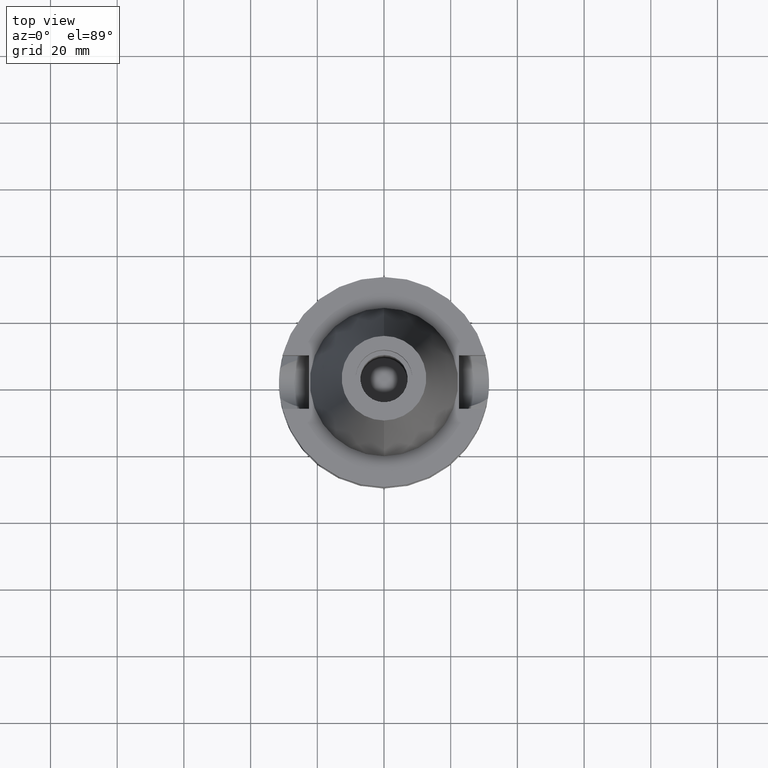
[diagram: clean part render]
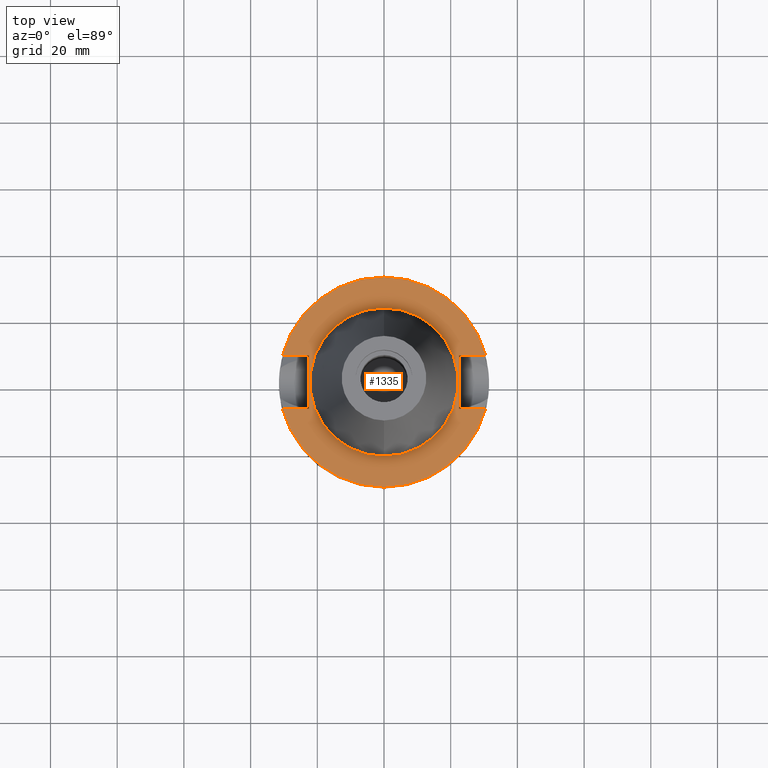
[diagram: same view with one face highlighted and labeled with its STEP entity id]
A machine part, top view. The second image highlights one B-rep face of the part: STEP entity #1335.
In plain terms, the highlighted planar face has unit normal (0, 0, -1).
Its self-contained STEP definition (entity closure, byte-faithful):
#94=DIRECTION('',(0.E0,1.E0,0.E0));
#95=VECTOR('',#94,1.61E1);
#96=CARTESIAN_POINT('',(-2.25E1,-8.05E0,-1.E0));
#97=LINE('',#96,#95);
#101=DIRECTION('',(-1.E0,-3.550916904668E-14,0.E0));
#102=VECTOR('',#101,7.954022722788E0);
#103=CARTESIAN_POINT('',(-2.25E1,8.05E0,-1.E0));
#104=LINE('',#103,#102);
#108=CARTESIAN_POINT('',(0.E0,2.148275415064E-14,-1.E0));
#109=DIRECTION('',(0.E0,0.E0,-1.E0));
#110=DIRECTION('',(-9.667943721520E-1,2.555555555556E-1,0.E0));
#111=AXIS2_PLACEMENT_3D('',#108,#109,#110);
#116=CARTESIAN_POINT('',(0.E0,2.148275415064E-14,-1.E0));
#117=DIRECTION('',(0.E0,0.E0,-1.E0));
#118=DIRECTION('',(0.E0,1.E0,0.E0));
#119=AXIS2_PLACEMENT_3D('',#116,#117,#118);
#124=DIRECTION('',(0.E0,-1.E0,0.E0));
#125=VECTOR('',#124,1.61E1);
#126=CARTESIAN_POINT('',(2.25E1,8.05E0,-1.E0));
#127=LINE('',#126,#125);
#131=DIRECTION('',(1.E0,3.573249715390E-14,0.E0));
#132=VECTOR('',#131,7.954022722788E0);
#133=CARTESIAN_POINT('',(2.25E1,-8.05E0,-1.E0));
#134=LINE('',#133,#132);
#138=CARTESIAN_POINT('',(0.E0,2.148275415064E-14,-1.E0));
#139=DIRECTION('',(0.E0,0.E0,-1.E0));
#140=DIRECTION('',(9.667943721520E-1,-2.555555555556E-1,0.E0));
#141=AXIS2_PLACEMENT_3D('',#138,#139,#140);
#146=CARTESIAN_POINT('',(0.E0,2.148275415064E-14,-1.E0));
#147=DIRECTION('',(0.E0,0.E0,-1.E0));
#148=DIRECTION('',(0.E0,-1.E0,0.E0));
#149=AXIS2_PLACEMENT_3D('',#146,#147,#148);
#154=CARTESIAN_POINT('',(0.E0,2.148275415064E-14,-1.E0));
#155=DIRECTION('',(0.E0,0.E0,1.E0));
#156=DIRECTION('',(0.E0,1.E0,0.E0));
#157=AXIS2_PLACEMENT_3D('',#154,#155,#156);
#162=CARTESIAN_POINT('',(0.E0,2.148275415064E-14,-1.E0));
#163=DIRECTION('',(0.E0,0.E0,1.E0));
#164=DIRECTION('',(0.E0,-1.E0,0.E0));
#165=AXIS2_PLACEMENT_3D('',#162,#163,#164);
#200=DIRECTION('',(-1.E0,3.550916904668E-14,0.E0));
#201=VECTOR('',#200,7.954022722788E0);
#202=CARTESIAN_POINT('',(-2.25E1,-8.05E0,-1.E0));
#203=LINE('',#202,#201);
#337=DIRECTION('',(1.E0,-3.506251283226E-14,0.E0));
#338=VECTOR('',#337,7.954022722788E0);
#339=CARTESIAN_POINT('',(2.25E1,8.05E0,-1.E0));
#340=LINE('',#339,#338);
#1088=CARTESIAN_POINT('',(0.E0,2.2225E1,-1.E0));
#1089=VERTEX_POINT('',#1088);
#1090=CARTESIAN_POINT('',(0.E0,-2.2225E1,-1.E0));
#1091=VERTEX_POINT('',#1090);
#1092=CARTESIAN_POINT('',(-2.25E1,-8.05E0,-1.E0));
#1093=CARTESIAN_POINT('',(-2.25E1,8.05E0,-1.E0));
#1094=VERTEX_POINT('',#1092);
#1095=VERTEX_POINT('',#1093);
#1096=CARTESIAN_POINT('',(-3.045402272279E1,8.05E0,-1.E0));
#1097=VERTEX_POINT('',#1096);
#1098=CARTESIAN_POINT('',(-3.046064939756E-14,3.15E1,-1.E0));
#1099=CARTESIAN_POINT('',(3.045402272279E1,8.05E0,-1.E0));
#1100=VERTEX_POINT('',#1098);
#1101=VERTEX_POINT('',#1099);
#1102=CARTESIAN_POINT('',(2.25E1,8.05E0,-1.E0));
#1103=VERTEX_POINT('',#1102);
#1104=CARTESIAN_POINT('',(2.25E1,-8.05E0,-1.E0));
#1105=VERTEX_POINT('',#1104);
#1106=CARTESIAN_POINT('',(3.045402272279E1,-8.05E0,-1.E0));
#1107=VERTEX_POINT('',#1106);
#1108=CARTESIAN_POINT('',(3.046064939756E-14,-3.15E1,-1.E0));
#1109=CARTESIAN_POINT('',(-3.045402272279E1,-8.05E0,-1.E0));
#1110=VERTEX_POINT('',#1108);
#1111=VERTEX_POINT('',#1109);
#1304=CARTESIAN_POINT('',(0.E0,1.212400331156E-14,-1.E0));
#1305=DIRECTION('',(0.E0,0.E0,-1.E0));
#1306=DIRECTION('',(0.E0,-1.E0,0.E0));
#1307=AXIS2_PLACEMENT_3D('',#1304,#1305,#1306);
#1308=PLANE('',#1307);
#1310=ORIENTED_EDGE('',*,*,#1309,.T.);
#1312=ORIENTED_EDGE('',*,*,#1311,.T.);
#1314=ORIENTED_EDGE('',*,*,#1313,.T.);
#1316=ORIENTED_EDGE('',*,*,#1315,.T.);
#1318=ORIENTED_EDGE('',*,*,#1317,.F.);
#1320=ORIENTED_EDGE('',*,*,#1319,.T.);
#1322=ORIENTED_EDGE('',*,*,#1321,.T.);
#1324=ORIENTED_EDGE('',*,*,#1323,.T.);
#1326=ORIENTED_EDGE('',*,*,#1325,.T.);
#1328=ORIENTED_EDGE('',*,*,#1327,.F.);
#1329=EDGE_LOOP('',(#1310,#1312,#1314,#1316,#1318,#1320,#1322,#1324,#1326,
#1328));
#1330=FACE_OUTER_BOUND('',#1329,.F.);
#1331=ORIENTED_EDGE('',*,*,#1299,.T.);
#1332=ORIENTED_EDGE('',*,*,#1283,.T.);
#1333=EDGE_LOOP('',(#1331,#1332));
#1334=FACE_BOUND('',#1333,.F.);
#112=CIRCLE('',#111,3.15E1);
#120=CIRCLE('',#119,3.15E1);
#142=CIRCLE('',#141,3.15E1);
#150=CIRCLE('',#149,3.15E1);
#158=CIRCLE('',#157,2.2225E1);
#166=CIRCLE('',#165,2.2225E1);
#1283=EDGE_CURVE('',#1091,#1089,#166,.T.);
#1299=EDGE_CURVE('',#1089,#1091,#158,.T.);
#1309=EDGE_CURVE('',#1094,#1095,#97,.T.);
#1311=EDGE_CURVE('',#1095,#1097,#104,.T.);
#1313=EDGE_CURVE('',#1097,#1100,#112,.T.);
#1315=EDGE_CURVE('',#1100,#1101,#120,.T.);
#1317=EDGE_CURVE('',#1103,#1101,#340,.T.);
#1319=EDGE_CURVE('',#1103,#1105,#127,.T.);
#1321=EDGE_CURVE('',#1105,#1107,#134,.T.);
#1323=EDGE_CURVE('',#1107,#1110,#142,.T.);
#1325=EDGE_CURVE('',#1110,#1111,#150,.T.);
#1327=EDGE_CURVE('',#1094,#1111,#203,.T.);
#1335=ADVANCED_FACE('',(#1330,#1334),#1308,.F.);